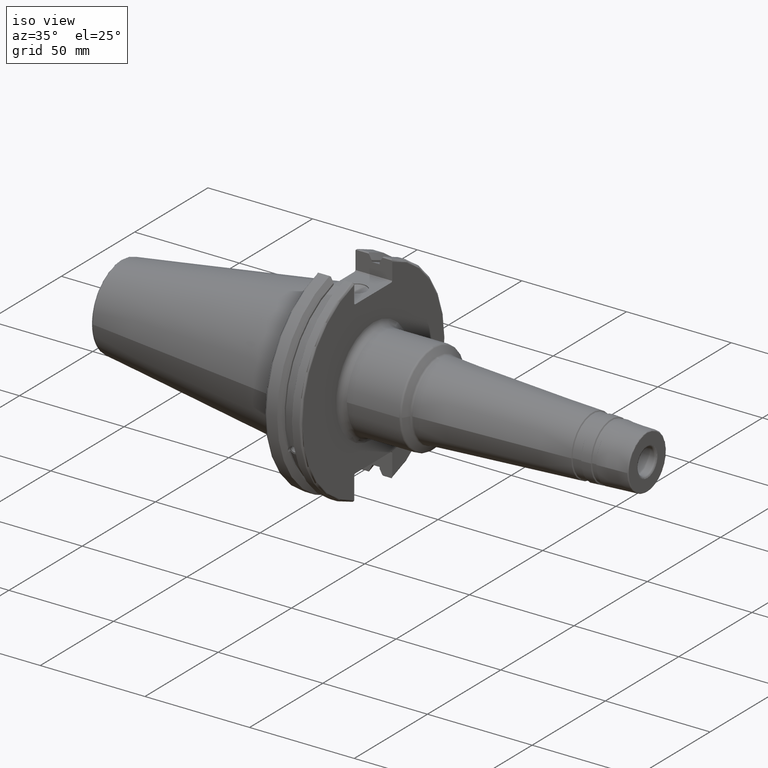
[diagram: clean part render]
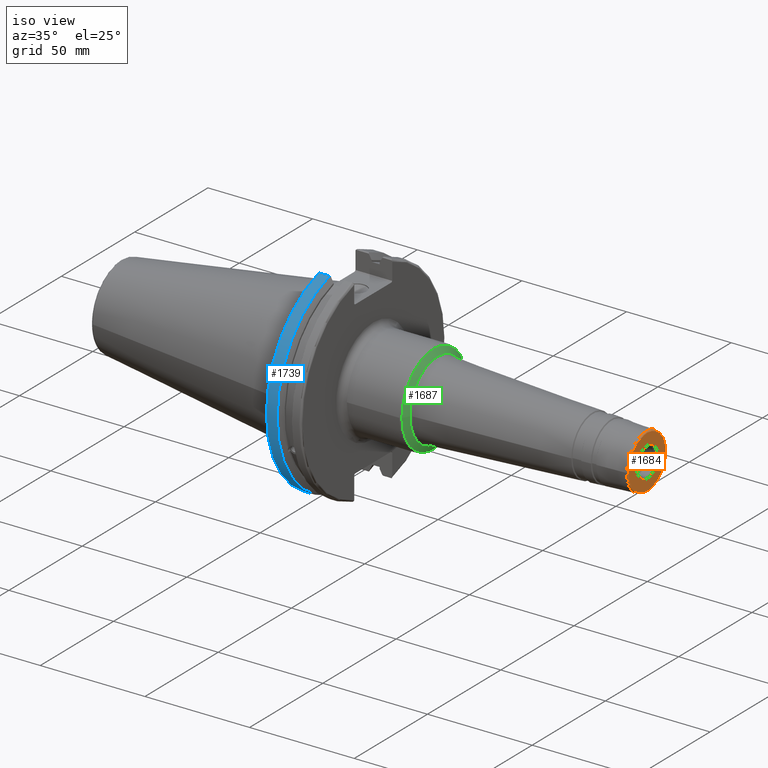
[diagram: same view with three faces highlighted in distinct colors, each labeled with its STEP entity id]
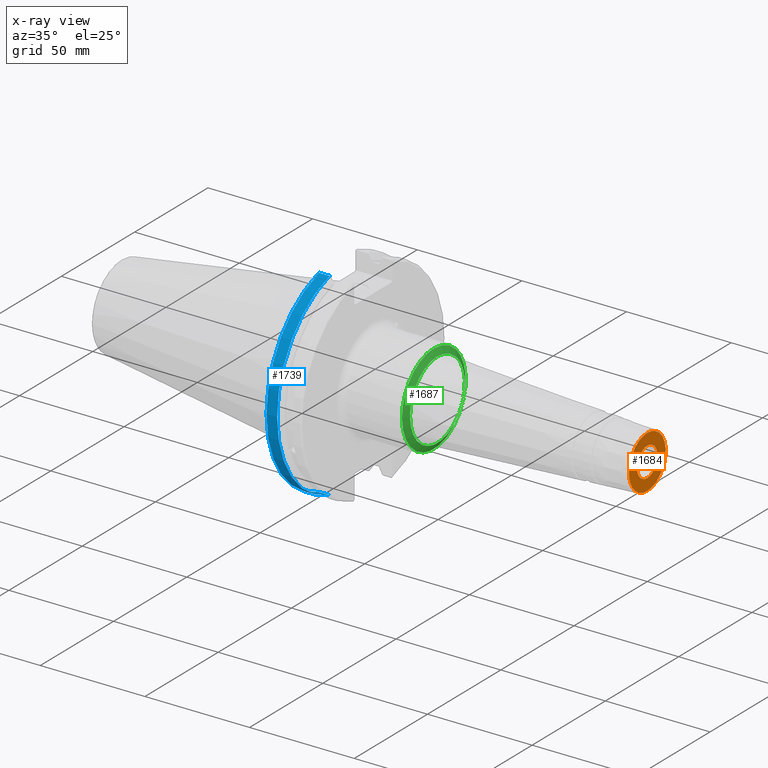
[diagram: x-ray of the same camera — body ghosted, the three highlighted faces saturated]
A machine part, iso view with three faces highlighted in distinct colors.
The next image is the same camera in x-ray (body ghosted, the three faces saturated) — at least one of them is partly hidden behind the body in this view.
Their STEP definitions:

[orange] entity #1684 — the highlighted planar face has unit normal (1, 0, 0).
#59=PLANE('',#1822);
#111=FACE_BOUND('',#275,.T.);
#171=FACE_OUTER_BOUND('',#274,.T.);
#274=EDGE_LOOP('',(#1164));
#275=EDGE_LOOP('',(#1165));
#601=CIRCLE('',#1818,12.5255177166426);
#605=CIRCLE('',#1823,7.);
#714=VERTEX_POINT('',#2638);
#717=VERTEX_POINT('',#2646);
#890=EDGE_CURVE('',#714,#714,#601,.T.);
#894=EDGE_CURVE('',#717,#717,#605,.T.);
#1164=ORIENTED_EDGE('',*,*,#890,.F.);
#1165=ORIENTED_EDGE('',*,*,#894,.F.);
#1684=ADVANCED_FACE('',(#171,#111),#59,.T.);
#1818=AXIS2_PLACEMENT_3D('',#2639,#2050,#2051);
#1822=AXIS2_PLACEMENT_3D('',#2645,#2058,#2059);
#1823=AXIS2_PLACEMENT_3D('',#2647,#2060,#2061);
#2050=DIRECTION('center_axis',(-1.,0.,0.));
#2051=DIRECTION('ref_axis',(0.,-1.,1.83697019872103E-16));
#2058=DIRECTION('center_axis',(1.,0.,0.));
#2059=DIRECTION('ref_axis',(0.,0.,-1.));
#2060=DIRECTION('center_axis',(1.,0.,0.));
#2061=DIRECTION('ref_axis',(0.,-1.,1.83697019872103E-16));
#2638=CARTESIAN_POINT('',(150.,-1.53393351793498E-15,12.5255177166426));
#2639=CARTESIAN_POINT('Origin',(150.,0.,0.));
#2645=CARTESIAN_POINT('Origin',(150.,6.00000000000001,0.));
#2646=CARTESIAN_POINT('',(150.,-8.57252759403147E-16,7.));
#2647=CARTESIAN_POINT('Origin',(150.,0.,0.));

[blue] entity #1739 — the highlighted cylindrical surface (partial cylindrical patch) has radius 49.2125 mm, axis along (1, 0, 0).
#226=FACE_OUTER_BOUND('',#338,.T.);
#338=EDGE_LOOP('',(#1458,#1459,#1460,#1461));
#454=LINE('',#3357,#557);
#455=LINE('',#3363,#558);
#557=VECTOR('',#2346,10.);
#558=VECTOR('',#2349,10.);
#661=CIRCLE('',#1934,49.2125);
#663=CIRCLE('',#1938,49.2125);
#827=VERTEX_POINT('',#3335);
#828=VERTEX_POINT('',#3344);
#829=VERTEX_POINT('',#3356);
#830=VERTEX_POINT('',#3362);
#1054=EDGE_CURVE('',#827,#828,#661,.T.);
#1057=EDGE_CURVE('',#828,#829,#454,.T.);
#1059=EDGE_CURVE('',#830,#827,#455,.T.);
#1060=EDGE_CURVE('',#829,#830,#663,.T.);
#1458=ORIENTED_EDGE('',*,*,#1054,.F.);
#1459=ORIENTED_EDGE('',*,*,#1059,.F.);
#1460=ORIENTED_EDGE('',*,*,#1060,.F.);
#1461=ORIENTED_EDGE('',*,*,#1057,.F.);
#1670=CYLINDRICAL_SURFACE('',#1937,49.2125);
#1739=ADVANCED_FACE('',(#226),#1670,.T.);
#1934=AXIS2_PLACEMENT_3D('',#3345,#2340,#2341);
#1937=AXIS2_PLACEMENT_3D('',#3361,#2347,#2348);
#1938=AXIS2_PLACEMENT_3D('',#3364,#2350,#2351);
#2340=DIRECTION('center_axis',(-1.,0.,0.));
#2341=DIRECTION('ref_axis',(0.,-1.,1.60812264967664E-16));
#2346=DIRECTION('',(1.,0.,0.));
#2347=DIRECTION('center_axis',(1.,0.,0.));
#2348=DIRECTION('ref_axis',(0.,-1.,1.22464679914735E-16));
#2349=DIRECTION('',(-1.,0.,0.));
#2350=DIRECTION('center_axis',(1.,0.,0.));
#2351=DIRECTION('ref_axis',(0.,0.,-1.));
#3335=CARTESIAN_POINT('',(2.5,-13.4317035994433,-47.3440544806494));
#3344=CARTESIAN_POINT('',(2.5,-13.4317035994433,47.3440544806494));
#3345=CARTESIAN_POINT('Origin',(2.5,0.,0.));
#3356=CARTESIAN_POINT('',(7.60089096595127,-13.4317035994433,47.3440544806494));
#3357=CARTESIAN_POINT('',(4.55044548297565,-13.4317035994433,47.3440544806494));
#3361=CARTESIAN_POINT('Origin',(4.55044548297565,0.,0.));
#3362=CARTESIAN_POINT('',(7.60089096595127,-13.4317035994433,-47.3440544806494));
#3363=CARTESIAN_POINT('',(4.55044548297565,-13.4317035994433,-47.3440544806494));
#3364=CARTESIAN_POINT('Origin',(7.60089096595127,0.,0.));

[green] entity #1687 — the highlighted conical surface has half-angle 60 deg.
#36=CONICAL_SURFACE('',#1830,20.2453889641521,1.0471975511966);
#174=FACE_OUTER_BOUND('',#278,.T.);
#278=EDGE_LOOP('',(#1177,#1178,#1179,#1180,#1181,#1182));
#397=LINE('',#2662,#500);
#500=VECTOR('',#2079,20.2453889641521);
#607=CIRCLE('',#1827,21.75);
#608=CIRCLE('',#1828,21.75);
#610=CIRCLE('',#1831,18.7109913573206);
#611=CIRCLE('',#1832,18.7109913573206);
#719=VERTEX_POINT('',#2653);
#720=VERTEX_POINT('',#2654);
#721=VERTEX_POINT('',#2659);
#722=VERTEX_POINT('',#2660);
#897=EDGE_CURVE('',#719,#720,#607,.T.);
#898=EDGE_CURVE('',#720,#719,#608,.T.);
#900=EDGE_CURVE('',#721,#722,#610,.T.);
#901=EDGE_CURVE('',#721,#720,#397,.T.);
#902=EDGE_CURVE('',#722,#721,#611,.T.);
#1177=ORIENTED_EDGE('',*,*,#900,.F.);
#1178=ORIENTED_EDGE('',*,*,#901,.T.);
#1179=ORIENTED_EDGE('',*,*,#897,.F.);
#1180=ORIENTED_EDGE('',*,*,#898,.F.);
#1181=ORIENTED_EDGE('',*,*,#901,.F.);
#1182=ORIENTED_EDGE('',*,*,#902,.F.);
#1687=ADVANCED_FACE('',(#174),#36,.T.);
#1827=AXIS2_PLACEMENT_3D('',#2655,#2069,#2070);
#1828=AXIS2_PLACEMENT_3D('',#2656,#2071,#2072);
#1830=AXIS2_PLACEMENT_3D('',#2658,#2075,#2076);
#1831=AXIS2_PLACEMENT_3D('',#2661,#2077,#2078);
#1832=AXIS2_PLACEMENT_3D('',#2663,#2080,#2081);
#2069=DIRECTION('center_axis',(-1.,0.,0.));
#2070=DIRECTION('ref_axis',(0.,-1.,3.06161699786838E-17));
#2071=DIRECTION('center_axis',(-1.,0.,0.));
#2072=DIRECTION('ref_axis',(0.,-1.,3.06161699786838E-17));
#2075=DIRECTION('center_axis',(-1.,0.,0.));
#2076=DIRECTION('ref_axis',(0.,1.,0.));
#2077=DIRECTION('center_axis',(1.,0.,0.));
#2078=DIRECTION('ref_axis',(0.,-1.,3.06161699786838E-17));
#2079=DIRECTION('',(-0.5,-0.866025403784439,-1.06057523872491E-16));
#2080=DIRECTION('center_axis',(1.,0.,0.));
#2081=DIRECTION('ref_axis',(0.,-1.,3.06161699786838E-17));
#2653=CARTESIAN_POINT('',(47.9739496922602,-2.66360678814549E-15,21.75));
#2654=CARTESIAN_POINT('',(47.9739496922602,-21.75,-2.66360678814549E-15));
#2655=CARTESIAN_POINT('Origin',(47.9739496922602,0.,-3.32950848518187E-15));
#2656=CARTESIAN_POINT('Origin',(47.9739496922602,0.,-3.32950848518187E-15));
#2658=CARTESIAN_POINT('Origin',(48.8426372788327,0.,0.));
#2659=CARTESIAN_POINT('',(49.7285221501808,-18.7109913573206,-2.29143556746165E-15));
#2660=CARTESIAN_POINT('',(49.7285221501808,-2.29143556746165E-15,18.7109913573206));
#2661=CARTESIAN_POINT('Origin',(49.7285221501808,0.,-2.86429445932706E-15));
#2662=CARTESIAN_POINT('',(48.8426372788327,-20.2453889641521,-2.4793450792442E-15));
#2663=CARTESIAN_POINT('Origin',(49.7285221501808,0.,-2.86429445932706E-15));